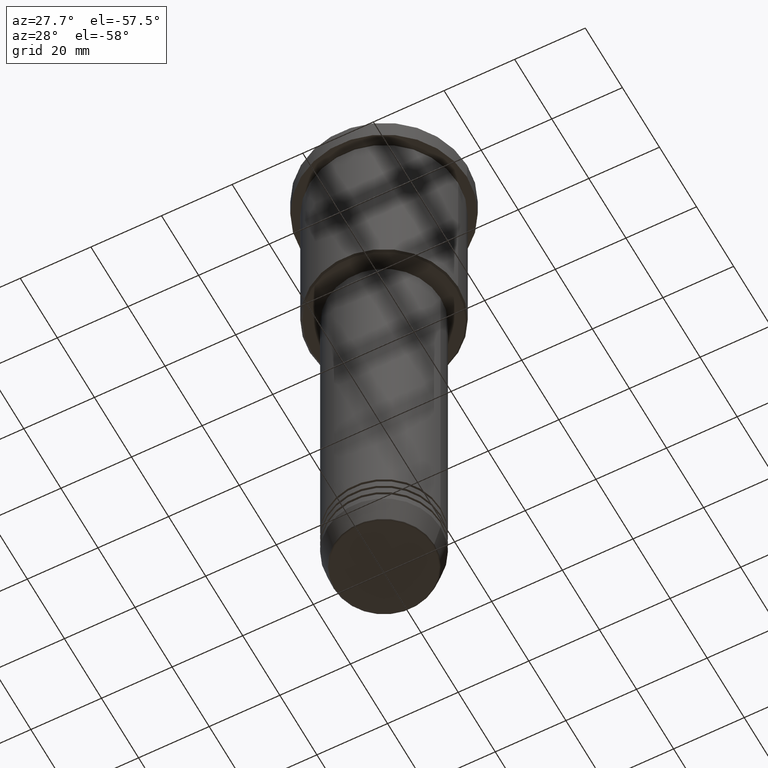
[diagram: clean part render]
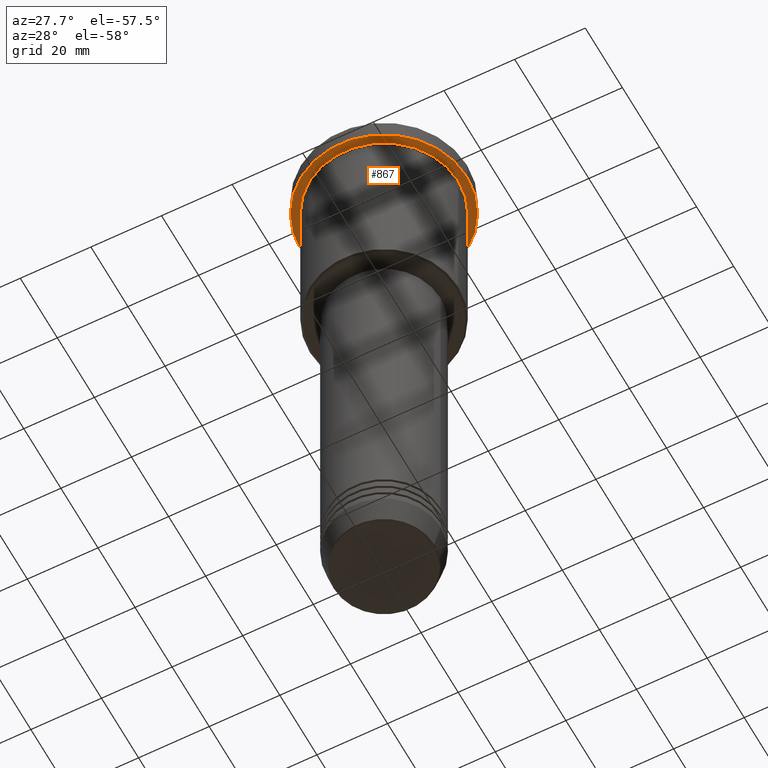
[diagram: same view with one face highlighted and labeled with its STEP entity id]
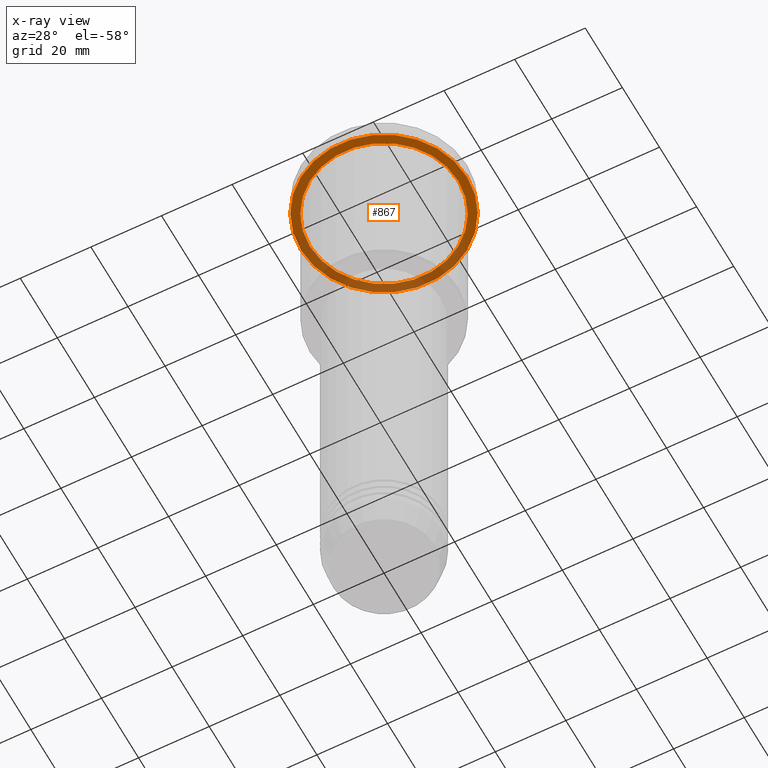
[diagram: x-ray of the same camera — body ghosted, the highlighted face saturated]
A machine part, auxiliary view. The second image highlights one B-rep face of the part: STEP entity #867.
The next image is the same camera in x-ray: the body ghosted, the highlighted face saturated — about 39% of this face is hidden behind the body in this view.
In plain terms, the highlighted planar face has unit normal (0, 0, -1).
Its self-contained STEP definition (entity closure, byte-faithful):
#17 = CARTESIAN_POINT ( 'NONE',  ( 0.000000000000000000, 23.50000000000000000, -5.999999999999994671 ) ) ;
#36 = DIRECTION ( 'NONE',  ( -0.000000000000000000, -0.000000000000000000, 1.000000000000000000 ) ) ;
#39 = EDGE_LOOP ( 'NONE', ( #713, #909 ) ) ;
#85 = VERTEX_POINT ( 'NONE', #463 ) ;
#91 = AXIS2_PLACEMENT_3D ( 'NONE', #397, #36, #1051 ) ;
#187 = DIRECTION ( 'NONE',  ( -1.000000000000000000, 0.000000000000000000, 0.000000000000000000 ) ) ;
#231 = VERTEX_POINT ( 'NONE', #405 ) ;
#268 = DIRECTION ( 'NONE',  ( 0.000000000000000000, 0.000000000000000000, -1.000000000000000000 ) ) ;
#294 = EDGE_CURVE ( 'NONE', #810, #550, #893, .T. ) ;
#325 = CARTESIAN_POINT ( 'NONE',  ( 21.00000000000000000, 2.571758278209441661E-15, -5.999999999999994671 ) ) ;
#382 = AXIS2_PLACEMENT_3D ( 'NONE', #557, #832, #187 ) ;
#397 = CARTESIAN_POINT ( 'NONE',  ( 0.000000000000000000, 0.000000000000000000, -5.999999999999994671 ) ) ;
#405 = CARTESIAN_POINT ( 'NONE',  ( 23.50000000000000000, 0.000000000000000000, -5.999999999999994671 ) ) ;
#428 = AXIS2_PLACEMENT_3D ( 'NONE', #1035, #1129, #485 ) ;
#450 = EDGE_CURVE ( 'NONE', #85, #231, #856, .T. ) ;
#463 = CARTESIAN_POINT ( 'NONE',  ( -23.50000000000000000, 2.877919977996280320E-15, -5.999999999999994671 ) ) ;
#485 = DIRECTION ( 'NONE',  ( 1.000000000000000000, 0.000000000000000000, 0.000000000000000000 ) ) ;
#494 = CIRCLE ( 'NONE', #428, 23.50000000000000000 ) ;
#519 = EDGE_CURVE ( 'NONE', #231, #85, #494, .T. ) ;
#549 = CARTESIAN_POINT ( 'NONE',  ( -21.00000000000000000, 0.000000000000000000, -5.999999999999994671 ) ) ;
#550 = VERTEX_POINT ( 'NONE', #325 ) ;
#557 = CARTESIAN_POINT ( 'NONE',  ( 0.000000000000000000, 0.000000000000000000, -5.999999999999994671 ) ) ;
#583 = DIRECTION ( 'NONE',  ( -1.000000000000000000, 0.000000000000000000, 0.000000000000000000 ) ) ;
#667 = CARTESIAN_POINT ( 'NONE',  ( 0.000000000000000000, 0.000000000000000000, -5.999999999999994671 ) ) ;
#704 = EDGE_LOOP ( 'NONE', ( #710, #1084 ) ) ;
#710 = ORIENTED_EDGE ( 'NONE', *, *, #519, .F. ) ;
#713 = ORIENTED_EDGE ( 'NONE', *, *, #294, .T. ) ;
#736 = DIRECTION ( 'NONE',  ( -1.000000000000000000, 0.000000000000000000, -0.000000000000000000 ) ) ;
#748 = FACE_BOUND ( 'NONE', #39, .T. ) ;
#756 = DIRECTION ( 'NONE',  ( -0.000000000000000000, -0.000000000000000000, 1.000000000000000000 ) ) ;
#810 = VERTEX_POINT ( 'NONE', #549 ) ;
#830 = PLANE ( 'NONE',  #1091 ) ;
#832 = DIRECTION ( 'NONE',  ( -0.000000000000000000, -0.000000000000000000, 1.000000000000000000 ) ) ;
#856 = CIRCLE ( 'NONE', #91, 23.50000000000000000 ) ;
#867 = ADVANCED_FACE ( 'NONE', ( #748, #1006 ), #830, .T. ) ;
#880 = CIRCLE ( 'NONE', #1053, 21.00000000000000000 ) ;
#893 = CIRCLE ( 'NONE', #382, 21.00000000000000000 ) ;
#909 = ORIENTED_EDGE ( 'NONE', *, *, #998, .T. ) ;
#998 = EDGE_CURVE ( 'NONE', #550, #810, #880, .T. ) ;
#1006 = FACE_OUTER_BOUND ( 'NONE', #704, .T. ) ;
#1035 = CARTESIAN_POINT ( 'NONE',  ( 0.000000000000000000, 0.000000000000000000, -5.999999999999994671 ) ) ;
#1051 = DIRECTION ( 'NONE',  ( 1.000000000000000000, 0.000000000000000000, 0.000000000000000000 ) ) ;
#1053 = AXIS2_PLACEMENT_3D ( 'NONE', #667, #756, #583 ) ;
#1084 = ORIENTED_EDGE ( 'NONE', *, *, #450, .F. ) ;
#1091 = AXIS2_PLACEMENT_3D ( 'NONE', #17, #268, #736 ) ;
#1129 = DIRECTION ( 'NONE',  ( -0.000000000000000000, -0.000000000000000000, 1.000000000000000000 ) ) ;